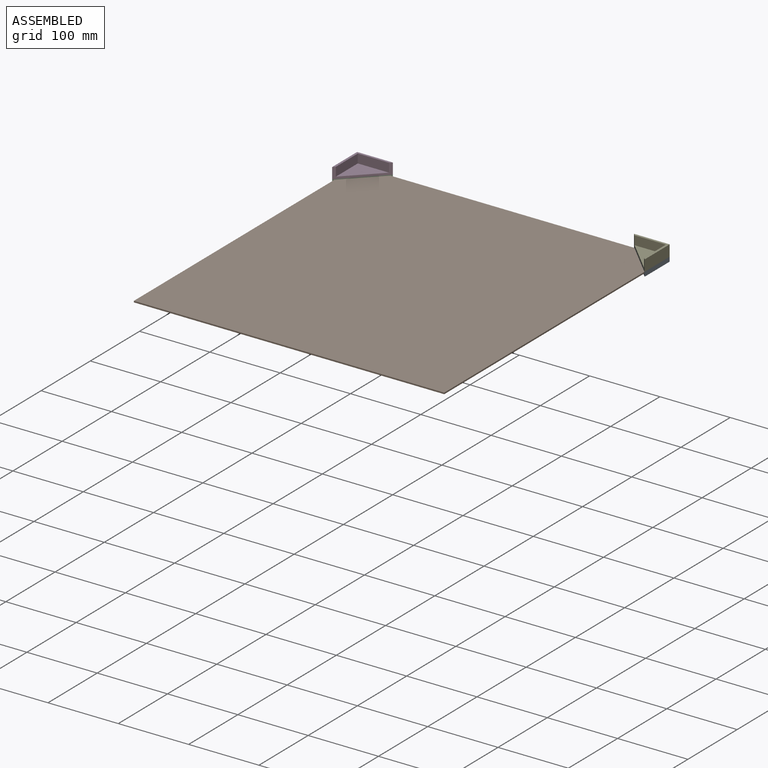
[diagram: assembled view]
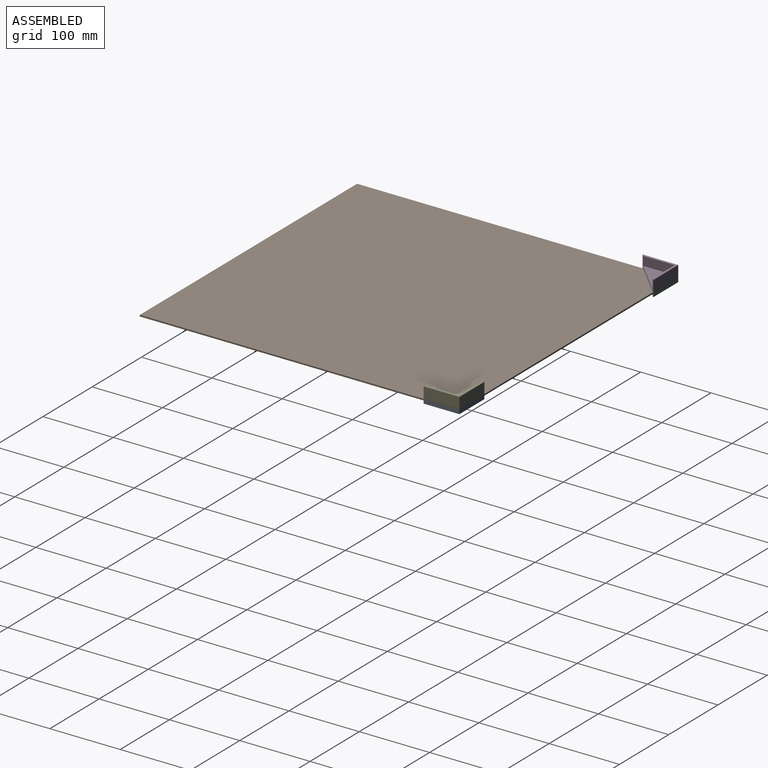
[diagram: assembled view, second angle]
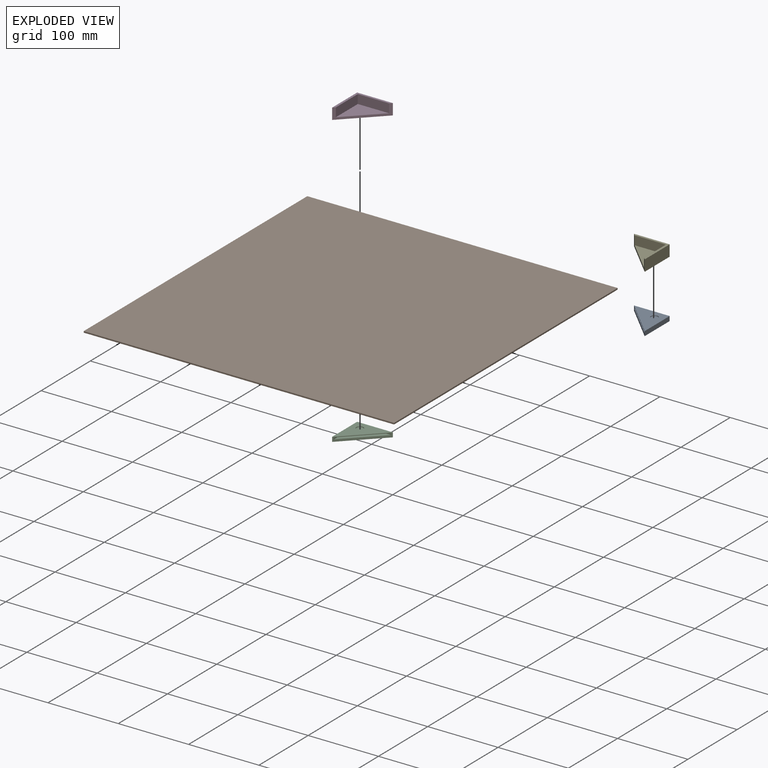
[diagram: exploded view]
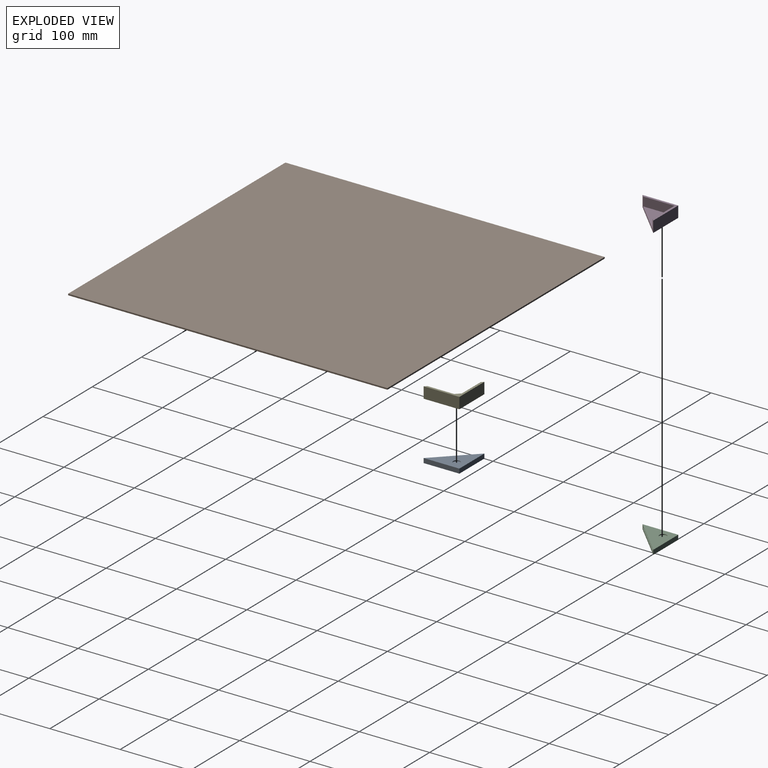
[diagram: exploded view, second angle]
ASSEMBLY  parts=5 mates=4
PART A: 10 faces, bbox 50.8x6.5x50.8 mm
  f0: plane 50.8x50.8mm, normal (-0.71,0,0.71), area 311.4mm2, adj f1,f3,f4,f5,f6,f7,f8,f9
  f1: plane 50.8x6.48mm, normal (0,0,-1), area 329mm2, adj f0,f3,f5,f8
  f2: cylinder r=5.08mm len=10.16mm, axis (0,1,0), area 32.4mm2, adj f4,f5
  f3: plane 50.8x6.48mm, normal (1,0,0), area 329mm2, adj f0,f1,f5,f8
  f4: plane 47.63x47.63mm, normal (0,-1,0), area 1053mm2, adj f0,f2,f6,f7
  f5: plane 50.8x50.8mm, normal (0,1,0), area 1209.2mm2, adj f0,f1,f2,f3
  f6: plane 47.63x2.29mm, normal (-1,0,0), area 108.9mm2, adj f0,f4,f7,f9
  f7: plane 47.63x2.29mm, normal (0,0,1), area 108.9mm2, adj f0,f4,f6,f9
  f8: plane 50.8x50.8mm, normal (0,-1,0), area 1290.3mm2, adj f0,f1,f3
  f9: plane 47.63x47.63mm, normal (0,1,0), area 1134.1mm2, adj f0,f6,f7
PART B: 6 faces, bbox 441.3x454x2 mm
  f0: plane 454.03x2.03mm, normal (1,0,0), area 922.6mm2, adj f1,f3,f4,f5
  f1: plane 441.33x2.03mm, normal (0,1,0), area 896.8mm2, adj f0,f2,f4,f5
  f2: plane 454.03x2.03mm, normal (-1,0,0), area 922.6mm2, adj f1,f3,f4,f5
  f3: plane 441.33x2.03mm, normal (0,-1,0), area 896.8mm2, adj f0,f2,f4,f5
  f4: plane 454.03x441.33mm, normal (0,0,1), area 200372.6mm2, adj f0,f1,f2,f3
  f5: plane 454.03x441.33mm, normal (0,0,-1), area 200372.6mm2, adj f0,f1,f2,f3
PART C: same geometry as A
PART D: 10 faces, bbox 50.8x15.9x50.8 mm
  f0: plane 44.45x44.45mm, normal (0,1,0), area 987.9mm2, adj f1,f7,f9
  f1: plane 50.8x50.8mm, normal (-0.71,0,0.71), area 342.1mm2, adj f0,f2,f3,f4,f7,f8,f9
  f2: plane 50.8x15.88mm, normal (0,0,-1), area 806.4mm2, adj f1,f3,f4,f8
  f3: plane 50.8x15.88mm, normal (1,0,0), area 806.5mm2, adj f1,f2,f4,f8
  f4: plane 50.8x50.8mm, normal (0,-1,0), area 1209.2mm2, adj f1,f2,f3,f5
  f5: cylinder r=5.08mm len=10.16mm, axis (0,-1,0), area 32.4mm2, adj f4,f6
  f6: plane 10.16x10.16mm, normal (0,-1,0), area 81.1mm2, adj f5
  f7: plane 44.45x12.7mm, normal (0,0,1), area 564.5mm2, adj f0,f1,f8,f9
  f8: plane 50.8x50.8mm, normal (0,1,0), area 302.4mm2, adj f1,f2,f3,f7,f9
  f9: plane 44.45x12.7mm, normal (-1,0,0), area 564.5mm2, adj f0,f1,f7,f8
PART E: same geometry as D
PLACE A rot(axis=(1,0,0),90deg) t=(215,212.88,5.95)mm
PLACE B t=(-7.25,-15.72,-0.53)mm
PLACE C rot(axis=(0.58,0.58,0.58),120deg) t=(-229.5,212.88,5.95)mm
PLACE D rot(axis=(0.58,0.58,0.58),120deg) t=(-229.5,212.88,5.69)mm
PLACE E rot(axis=(1,0,0),90deg) t=(215,212.88,5.82)mm
MATE fastened A.f7 <-> B.f1  axis (0,-1,0) through (213.41,211.3,-0.53)mm
MATE fastened C.f6 <-> B.f1  axis (0,-1,0) through (-227.91,211.3,-0.53)mm
MATE slider E.f5 <-> A.f2  axis (0,0,-1) through (202.3,200.18,3.66)mm
MATE slider D.f5 <-> C.f2  axis (0,0,-1) through (-216.8,200.18,2.52)mm
